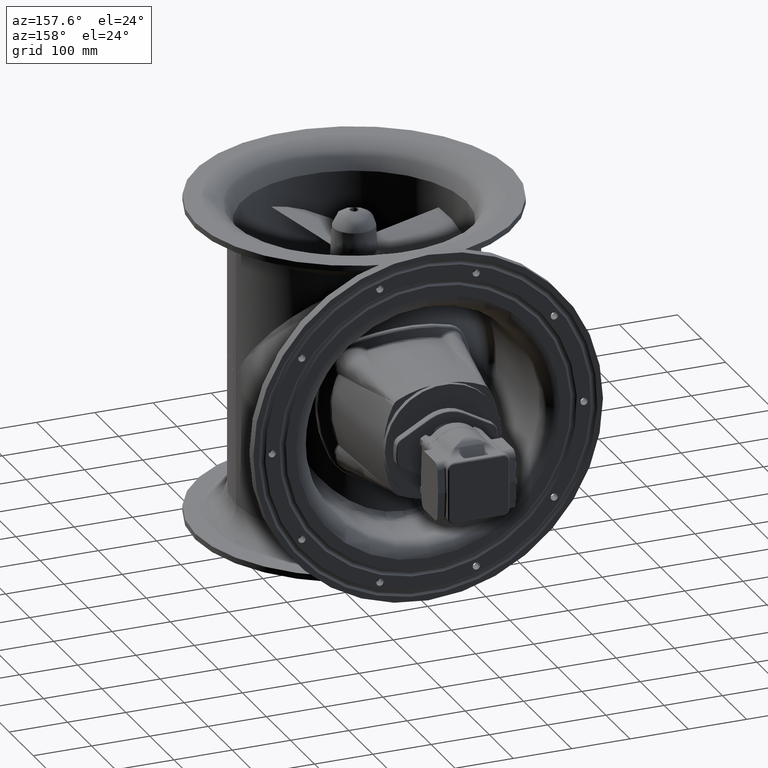
[diagram: clean part render]
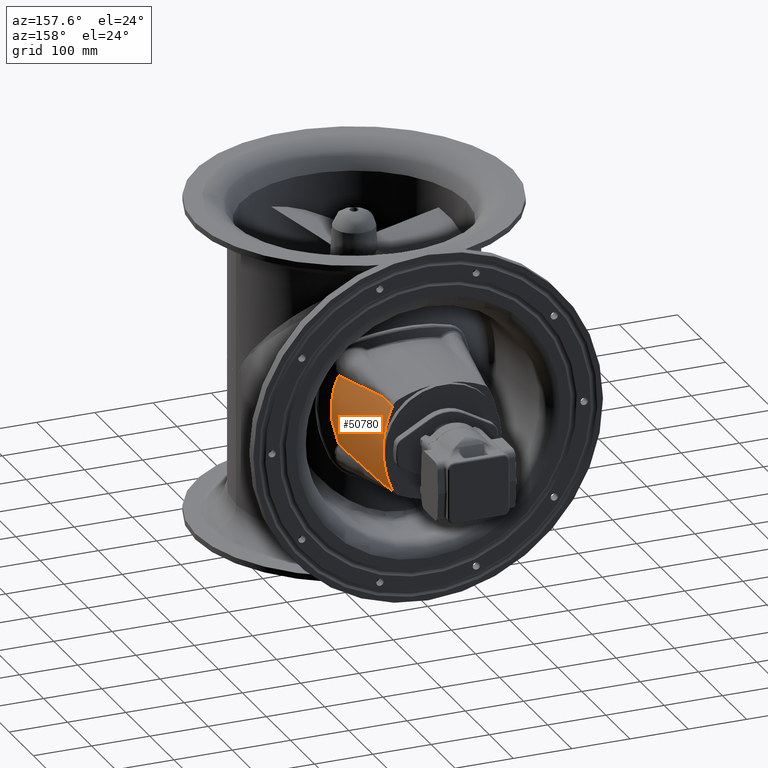
[diagram: same view with one face highlighted and labeled with its STEP entity id]
A machine part, auxiliary view. The second image highlights one B-rep face of the part: STEP entity #50780.
In plain terms, the highlighted conical surface has half-angle 5 deg.
Its self-contained STEP definition (entity closure, byte-faithful):
#3044=CONICAL_SURFACE('',#55716,175.,5.);
#6721=CIRCLE('',#55717,175.);
#14942=FACE_OUTER_BOUND('',#18058,.T.);
#18058=EDGE_LOOP('',(#44566,#44567,#44568,#44569,#44570,#44571));
#18441=B_SPLINE_CURVE_WITH_KNOTS('',3,(#98791,#98792,#98793,#98794,#98795,
#98796,#98797,#98798),.UNSPECIFIED.,.F.,.F.,(4,1,1,1,1,4),(-14.3111656402019,
-6.13335670294366,-4.0889044686291,-2.04445223431455,-1.02222611715728,
0.),.UNSPECIFIED.);
#18442=B_SPLINE_CURVE_WITH_KNOTS('',3,(#98800,#98801,#98802,#98803,#98804,
#98805,#98806,#98807,#98808,#98809),.UNSPECIFIED.,.F.,.F.,(4,1,1,1,1,1,
1,4),(-21.4773665208314,-19.7055200818978,-17.9336736429641,-16.1618272040304,
-14.3899807650967,-12.6181343261631,-10.8462878872294,-9.07444144829569),
 .UNSPECIFIED.);
#18443=B_SPLINE_CURVE_WITH_KNOTS('',3,(#98811,#98812,#98813,#98814,#98815,
#98816,#98817,#98818),.UNSPECIFIED.,.F.,.F.,(4,1,1,1,1,4),(-15.422918744663,
-14.4006926275058,-13.3784665103485,-11.334014276034,-7.24510980740494,
-1.11175310446138),.UNSPECIFIED.);
#18444=B_SPLINE_CURVE_WITH_KNOTS('',3,(#98820,#98821,#98822,#98823),
 .UNSPECIFIED.,.F.,.F.,(4,4),(2.00902162050308,5.10415988422087),
 .UNSPECIFIED.);
#18445=B_SPLINE_CURVE_WITH_KNOTS('',3,(#98826,#98827,#98828,#98829),
 .UNSPECIFIED.,.F.,.F.,(4,4),(-5.10415988422082,-2.00902162050311),
 .UNSPECIFIED.);
#22994=VERTEX_POINT('',#98789);
#22995=VERTEX_POINT('',#98790);
#22996=VERTEX_POINT('',#98799);
#22997=VERTEX_POINT('',#98810);
#22998=VERTEX_POINT('',#98819);
#22999=VERTEX_POINT('',#98824);
#30069=EDGE_CURVE('',#22994,#22995,#18441,.T.);
#30070=EDGE_CURVE('',#22996,#22994,#18442,.T.);
#30071=EDGE_CURVE('',#22997,#22996,#18443,.T.);
#30072=EDGE_CURVE('',#22998,#22997,#18444,.T.);
#30073=EDGE_CURVE('',#22999,#22998,#6721,.T.);
#30074=EDGE_CURVE('',#22995,#22999,#18445,.T.);
#44566=ORIENTED_EDGE('',*,*,#30069,.F.);
#44567=ORIENTED_EDGE('',*,*,#30070,.F.);
#44568=ORIENTED_EDGE('',*,*,#30071,.F.);
#44569=ORIENTED_EDGE('',*,*,#30072,.F.);
#44570=ORIENTED_EDGE('',*,*,#30073,.F.);
#44571=ORIENTED_EDGE('',*,*,#30074,.F.);
#50780=ADVANCED_FACE('',(#14942),#3044,.T.);
#55716=AXIS2_PLACEMENT_3D('',#98788,#67974,#67975);
#55717=AXIS2_PLACEMENT_3D('',#98825,#67976,#67977);
#67974=DIRECTION('center_axis',(-5.02815290480203E-16,-1.,-3.60586168516354E-16));
#67975=DIRECTION('ref_axis',(0.889393280929908,-6.12039932223674E-16,0.457142857142856));
#67976=DIRECTION('center_axis',(5.02815290480203E-16,1.,3.60586168516354E-16));
#67977=DIRECTION('ref_axis',(0.889393280929908,-6.12039932223674E-16,0.457142857142856));
#98788=CARTESIAN_POINT('Origin',(-570.644432098968,868.055165407791,-216.117215801391));
#98789=CARTESIAN_POINT('',(-390.307798321213,696.442154946401,-156.249928973446));
#98790=CARTESIAN_POINT('',(-409.837250896573,837.237057669182,-140.506353964696));
#98791=CARTESIAN_POINT('Ctrl Pts',(-390.307798321213,696.442154946401,-156.249928973446));
#98792=CARTESIAN_POINT('Ctrl Pts',(-393.767634267678,723.303189033704,-153.286791864646));
#98793=CARTESIAN_POINT('Ctrl Pts',(-398.205683352795,756.87885446048,-149.706840501827));
#98794=CARTESIAN_POINT('Ctrl Pts',(-403.806759455072,797.125430440024,-145.37890998549));
#98795=CARTESIAN_POINT('Ctrl Pts',(-406.213271352004,813.875575636876,-143.51495640238));
#98796=CARTESIAN_POINT('Ctrl Pts',(-408.223962596956,827.250795044879,-141.902127618491));
#98797=CARTESIAN_POINT('Ctrl Pts',(-409.280038074492,833.917372563565,-141.008856508472));
#98798=CARTESIAN_POINT('Ctrl Pts',(-409.837250896574,837.237057669182,-140.506353964696));
#98799=CARTESIAN_POINT('',(-390.307798321213,696.442154946401,-275.984502629336));
#98800=CARTESIAN_POINT('Ctrl Pts',(-390.307798321213,696.442154946401,-275.984502629336));
#98801=CARTESIAN_POINT('Ctrl Pts',(-388.416548161456,695.376236506106,-270.583526856998));
#98802=CARTESIAN_POINT('Ctrl Pts',(-385.113127003965,693.440212806719,-259.527657640485));
#98803=CARTESIAN_POINT('Ctrl Pts',(-381.724251850915,691.349061460564,-242.339016640712));
#98804=CARTESIAN_POINT('Ctrl Pts',(-380.022139099106,690.266148930664,-224.843366829829));
#98805=CARTESIAN_POINT('Ctrl Pts',(-380.022248845561,690.265838657232,-207.38948854687));
#98806=CARTESIAN_POINT('Ctrl Pts',(-381.724751120799,691.349582317681,-189.896508259212));
#98807=CARTESIAN_POINT('Ctrl Pts',(-385.11334309154,693.440314821699,-172.706678717793));
#98808=CARTESIAN_POINT('Ctrl Pts',(-388.416548161456,695.376236506105,-161.650904745785));
#98809=CARTESIAN_POINT('Ctrl Pts',(-390.307798321213,696.442154946401,-156.249928973446));
#98810=CARTESIAN_POINT('',(-409.837250896573,837.23705766918,-291.728077638087));
#98811=CARTESIAN_POINT('Ctrl Pts',(-409.837250896573,837.23705766918,-291.728077638086));
#98812=CARTESIAN_POINT('Ctrl Pts',(-409.280038074492,833.917372563563,-291.22557509431));
#98813=CARTESIAN_POINT('Ctrl Pts',(-408.22419410893,827.250695956642,-290.332780530973));
#98814=CARTESIAN_POINT('Ctrl Pts',(-406.21275496913,813.87581006633,-288.718410018124));
#98815=CARTESIAN_POINT('Ctrl Pts',(-402.846518154656,790.424343185245,-286.114807960663));
#98816=CARTESIAN_POINT('Ctrl Pts',(-397.31835734878,750.161101192081,-281.830050224207));
#98817=CARTESIAN_POINT('Ctrl Pts',(-392.902675281062,716.587930511878,-278.206855460937));
#98818=CARTESIAN_POINT('Ctrl Pts',(-390.307798321213,696.442154946401,-275.984502629336));
#98819=CARTESIAN_POINT('',(-411.813262373521,868.055165398999,-289.58598143634));
#98820=CARTESIAN_POINT('Ctrl Pts',(-411.813262372238,868.055165380673,-289.585981437335));
#98821=CARTESIAN_POINT('Ctrl Pts',(-411.154025009387,857.782564628608,-290.301542362529));
#98822=CARTESIAN_POINT('Ctrl Pts',(-410.495367828611,847.50986008936,-291.015544698352));
#98823=CARTESIAN_POINT('Ctrl Pts',(-409.837250896573,837.23705766918,-291.728077638087));
#98824=CARTESIAN_POINT('',(-411.81326237352,868.055165398999,-142.648450166442));
#98825=CARTESIAN_POINT('Origin',(-570.644432098968,868.055165407791,-216.117215801391));
#98826=CARTESIAN_POINT('Ctrl Pts',(-409.837250896573,837.237057669182,-140.506353964696));
#98827=CARTESIAN_POINT('Ctrl Pts',(-410.495367828611,847.509860089363,-141.218886904431));
#98828=CARTESIAN_POINT('Ctrl Pts',(-411.154025009387,857.782564628608,-141.932889240254));
#98829=CARTESIAN_POINT('Ctrl Pts',(-411.813262372238,868.055165380672,-142.648450165447));